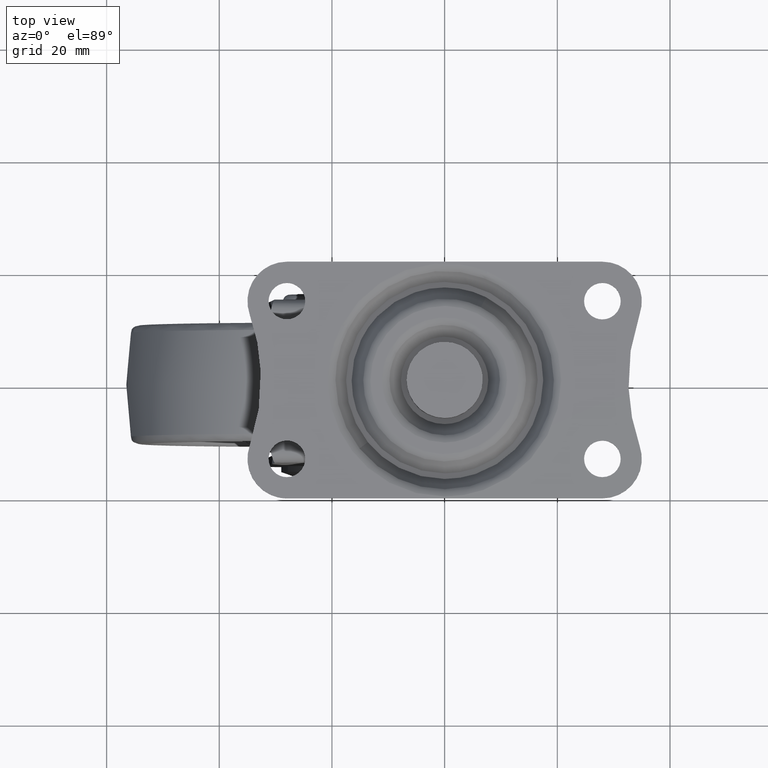
[diagram: clean part render]
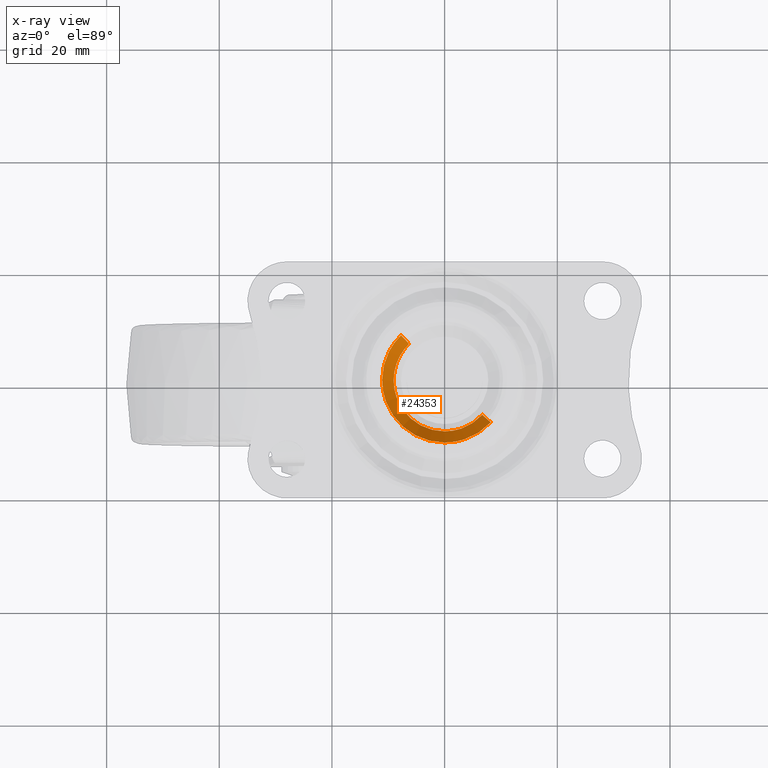
[diagram: x-ray — body ghosted, one internal face saturated and labeled with its STEP entity id]
A machine part, top view, then the same camera in x-ray: the body is ghosted and one INTERNAL B-rep face — a face not visible from any outside direction — is saturated and labeled: STEP entity #24353.
In plain terms, the highlighted face is a freeform B-spline surface patch.
Its self-contained STEP definition (entity closure, byte-faithful):
#24225=CARTESIAN_POINT('',(-6.275352381017203,6.448280884698090,-3.638749211876232));
#24226=CARTESIAN_POINT('',(-6.459899409568419,6.268682995627110,-3.638749211876231));
#24227=CARTESIAN_POINT('',(-6.633872752473064,6.078824407555831,-3.638749211876231));
#24228=CARTESIAN_POINT('',(-12.712697160028895,-0.555048344917233,-3.638749211876231));
#24229=CARTESIAN_POINT('',(-6.078824407555831,-6.633872752473064,-3.638749211876231));
#24230=CARTESIAN_POINT('',(0.555048344917233,-12.712697160028895,-3.638749211876231));
#24231=CARTESIAN_POINT('',(6.633872752473064,-6.078824407555831,-3.638749211876231));
#24232=CARTESIAN_POINT('',(-7.777170112977967,7.991483877186217,0.090968730296906));
#24233=CARTESIAN_POINT('',(-8.005882948169345,7.768904609851055,0.090968730296906));
#24234=CARTESIAN_POINT('',(-8.221491602591003,7.533609052376593,0.090968730296906));
#24235=CARTESIAN_POINT('',(-15.755100654967590,-0.687882550214410,0.090968730296906));
#24236=CARTESIAN_POINT('',(-7.533609052376593,-8.221491602591003,0.090968730296906));
#24237=CARTESIAN_POINT('',(0.687882550214410,-15.755100654967590,0.090968730296906));
#24238=CARTESIAN_POINT('',(8.221491602591003,-7.533609052376593,0.090968730296906));
#24246=(BOUNDED_SURFACE()B_SPLINE_SURFACE(2,1,((#24225,#24232),(#24226,#24233),(#24227,#24234),(#24228,#24235),(#24229,#24236),(#24230,#24237),(#24231,#24238)),.UNSPECIFIED.,.F.,.F.,.U.)B_SPLINE_SURFACE_WITH_KNOTS((3,2,2,3),(2,2),(0.0,0.739033338952446,19.214866812763582,37.690700286574710),(0.0,4.306707315830076),.UNSPECIFIED.)GEOMETRIC_REPRESENTATION_ITEM()RATIONAL_B_SPLINE_SURFACE(((0.977505800795127,0.977505800795127),(0.988284271247462,0.988284271247462),(1.0,1.0),(0.707106781186548,0.707106781186548),(1.0,1.0),(0.707106781186548,0.707106781186548),(1.0,1.0)))REPRESENTATION_ITEM('')SURFACE());
#24247=CARTESIAN_POINT('',(-11.098631116230660,0.0,0.0));
#24248=VERTEX_POINT('',#24247);
#24249=CARTESIAN_POINT('',(-7.740539907559015,7.953844261262740,-0.000000250651297));
#24250=VERTEX_POINT('',#24249);
#24251=CARTESIAN_POINT('',(-11.098631116230660,0.0,0.0));
#24252=CARTESIAN_POINT('',(-11.099026680331100,1.016138287757117,-0.000000032021796));
#24253=CARTESIAN_POINT('',(-10.875005421913150,2.632417289203939,-0.000000082955963));
#24254=CARTESIAN_POINT('',(-10.148532275371441,4.587002487325278,-0.000000144551249));
#24255=CARTESIAN_POINT('',(-9.217833806230939,6.293268531928642,-0.000000198321198));
#24256=CARTESIAN_POINT('',(-8.369601365451421,7.341970969072723,-0.000000231369196));
#24257=CARTESIAN_POINT('',(-7.740539907559015,7.953844261262740,-0.000000250651297));
#24258=B_SPLINE_CURVE_WITH_KNOTS('',3,(#24251,#24252,#24253,#24254,#24255,#24256,#24257),.UNSPECIFIED.,.F.,.U.,(4,1,1,1,4),(0.000000023090429,3.048291993790739,4.849521519612389,6.235121552947033,8.867735396641711),.UNSPECIFIED.);
#24259=EDGE_CURVE('',#24248,#24250,#24258,.T.);
#24260=ORIENTED_EDGE('',*,*,#24259,.T.);
#24261=CARTESIAN_POINT('',(-6.311088674813226,6.485001955672990,-3.549999230230663));
#24262=VERTEX_POINT('',#24261);
#24263=CARTESIAN_POINT('',(-6.311088674813226,6.485001955672990,-3.549999230230663));
#24264=CARTESIAN_POINT('',(-7.740539907559015,7.953844261262740,-0.000000250651297));
#24265=QUASI_UNIFORM_CURVE('',1,(#24263,#24264),.UNSPECIFIED.,.F.,.U.);
#24266=EDGE_CURVE('',#24262,#24250,#24265,.T.);
#24267=ORIENTED_EDGE('',*,*,#24266,.F.);
#24268=CARTESIAN_POINT('',(-7.929732538893569,4.359407354090626,-3.549999231098762));
#24269=VERTEX_POINT('',#24268);
#24270=CARTESIAN_POINT('',(-7.929732538893569,4.359407354090626,-3.549999231098762));
#24271=CARTESIAN_POINT('',(-7.499254136962046,5.142785371195523,-3.549999230783733));
#24272=CARTESIAN_POINT('',(-6.951909705705177,5.861801094461892,-3.549999230490087));
#24273=CARTESIAN_POINT('',(-6.311088674813226,6.485001955672990,-3.549999230230663));
#24274=B_SPLINE_CURVE_WITH_KNOTS('',3,(#24270,#24271,#24272,#24273),.UNSPECIFIED.,.F.,.U.,(4,4),(3.897561E-009,2.681543873727163),.UNSPECIFIED.);
#24275=EDGE_CURVE('',#24269,#24262,#24274,.T.);
#24276=ORIENTED_EDGE('',*,*,#24275,.F.);
#24277=CARTESIAN_POINT('',(-9.049038105676662,0.0,-3.549999229117570));
#24278=VERTEX_POINT('',#24277);
#24279=CARTESIAN_POINT('',(-9.049038105676662,0.0,-3.549999229117570));
#24280=CARTESIAN_POINT('',(-9.049070596346232,0.521186822193810,-3.549999229117509));
#24281=CARTESIAN_POINT('',(-8.954665831790218,1.610941033083731,-3.549999229284618));
#24282=CARTESIAN_POINT('',(-8.552812910382972,3.079882761023559,-3.549999229995895));
#24283=CARTESIAN_POINT('',(-8.135170822972350,3.985732889499337,-3.549999230735138));
#24284=CARTESIAN_POINT('',(-7.929732538893569,4.359407354090626,-3.549999231098762));
#24285=B_SPLINE_CURVE_WITH_KNOTS('',3,(#24279,#24280,#24281,#24282,#24283,#24284),.UNSPECIFIED.,.F.,.U.,(4,1,1,4),(5.581610E-009,1.563577705939092,3.269298635704525,4.548589419841812),.UNSPECIFIED.);
#24286=EDGE_CURVE('',#24278,#24269,#24285,.T.);
#24287=ORIENTED_EDGE('',*,*,#24286,.F.);
#24288=CARTESIAN_POINT('',(-0.000002565738609,-9.049038105676297,-3.549999229117570));
#24289=VERTEX_POINT('',#24288);
#24290=CARTESIAN_POINT('',(-0.000002565738609,-9.049038105676297,-3.549999229117570));
#24291=CARTESIAN_POINT('',(-0.592257297561995,-9.049116562267564,-3.549999229117571));
#24292=CARTESIAN_POINT('',(-1.591657879998566,-8.950546108700136,-3.549999229117566));
#24293=CARTESIAN_POINT('',(-3.131794825881588,-8.534519712944064,-3.549999229117571));
#24294=CARTESIAN_POINT('',(-4.653604364157085,-7.837605503857790,-3.549999229117569));
#24295=CARTESIAN_POINT('',(-6.119331742639263,-6.750489791863275,-3.549999229117572));
#24296=CARTESIAN_POINT('',(-7.259826638539376,-5.476422047816167,-3.549999229117560));
#24297=CARTESIAN_POINT('',(-8.027064294848067,-4.248143526732790,-3.549999229117600));
#24298=CARTESIAN_POINT('',(-8.560819649660314,-3.023789668367105,-3.549999229117566));
#24299=CARTESIAN_POINT('',(-8.946911530924272,-1.628675833537863,-3.549999229117593));
#24300=CARTESIAN_POINT('',(-9.049112912418677,-0.592254414775790,-3.549999229117515));
#24301=CARTESIAN_POINT('',(-9.049038105676662,0.0,-3.549999229117570));
#24302=B_SPLINE_CURVE_WITH_KNOTS('',3,(#24290,#24291,#24292,#24293,#24294,#24295,#24296,#24297,#24298,#24299,#24300,#24301),.UNSPECIFIED.,.F.,.U.,(4,1,1,1,1,1,1,1,1,4),(0.000000113192669,1.776757980613413,2.998323726201360,4.775130331233964,6.774040870650740,8.439696275261888,9.883356939964610,11.104911559467700,12.437524691607910,14.214283559371371),.UNSPECIFIED.);
#24303=EDGE_CURVE('',#24289,#24278,#24302,.T.);
#24304=ORIENTED_EDGE('',*,*,#24303,.F.);
#24305=CARTESIAN_POINT('',(6.671650126351979,-6.113440992913706,-3.549999505810015));
#24306=VERTEX_POINT('',#24305);
#24307=CARTESIAN_POINT('',(6.671650126351979,-6.113440992913706,-3.549999505810015));
#24308=CARTESIAN_POINT('',(6.328513980411414,-6.487960644494883,-3.549999491579186));
#24309=CARTESIAN_POINT('',(5.550127379494427,-7.205588586999760,-3.549999459297279));
#24310=CARTESIAN_POINT('',(4.261902681720523,-8.031225516755077,-3.549999405870938));
#24311=CARTESIAN_POINT('',(2.818963412504174,-8.643955910096439,-3.549999346028125));
#24312=CARTESIAN_POINT('',(1.406614428093220,-8.979356988792356,-3.549999287454001));
#24313=CARTESIAN_POINT('',(0.429793020980040,-9.049049669153765,-3.549999246942426));
#24314=CARTESIAN_POINT('',(-0.000002565738609,-9.049038105676297,-3.549999229117570));
#24315=B_SPLINE_CURVE_WITH_KNOTS('',3,(#24307,#24308,#24309,#24310,#24311,#24312,#24313,#24314),.UNSPECIFIED.,.F.,.U.,(4,1,1,1,1,4),(0.000000028262368,1.523838654733125,3.164917960566754,4.571521479596308,6.212593633029307,7.501991362628532),.UNSPECIFIED.);
#24316=EDGE_CURVE('',#24306,#24289,#24315,.T.);
#24317=ORIENTED_EDGE('',*,*,#24316,.F.);
#24318=CARTESIAN_POINT('',(8.182768659975965,-7.498126012908743,-0.000000249789727));
#24319=VERTEX_POINT('',#24318);
#24320=CARTESIAN_POINT('',(6.671650126351979,-6.113440992913706,-3.549999505810015));
#24321=CARTESIAN_POINT('',(8.182768659975965,-7.498126012908743,-0.000000249789727));
#24322=QUASI_UNIFORM_CURVE('',1,(#24320,#24321),.UNSPECIFIED.,.F.,.U.);
#24323=EDGE_CURVE('',#24306,#24319,#24322,.T.);
#24324=ORIENTED_EDGE('',*,*,#24323,.T.);
#24325=CARTESIAN_POINT('',(-0.000002316272697,-11.098631116230420,0.0));
#24326=VERTEX_POINT('',#24325);
#24327=CARTESIAN_POINT('',(8.182768659975965,-7.498126012908743,-0.000000249789727));
#24328=CARTESIAN_POINT('',(7.632480848820251,-8.098884982569802,-0.000000232991478));
#24329=CARTESIAN_POINT('',(6.580156278358750,-9.019502060871048,-0.000000200867905));
#24330=CARTESIAN_POINT('',(4.797959798891673,-10.066330146151319,-0.000000146464041));
#24331=CARTESIAN_POINT('',(2.683498662881012,-10.868895890234580,-0.000000081917364));
#24332=CARTESIAN_POINT('',(1.006403796788836,-11.098957073777679,-0.000000030721858));
#24333=CARTESIAN_POINT('',(-0.000002316272697,-11.098631116230420,0.0));
#24334=B_SPLINE_CURVE_WITH_KNOTS('',3,(#24327,#24328,#24329,#24330,#24331,#24332,#24333),.UNSPECIFIED.,.F.,.U.,(4,1,1,1,4),(0.000000021237559,2.444065362254084,4.169303560638908,6.182042118648760,9.201179976503736),.UNSPECIFIED.);
#24335=EDGE_CURVE('',#24319,#24326,#24334,.T.);
#24336=ORIENTED_EDGE('',*,*,#24335,.T.);
#24337=CARTESIAN_POINT('',(-0.000002316272697,-11.098631116230420,0.0));
#24338=CARTESIAN_POINT('',(-1.089655070192119,-11.099050428787290,0.0));
#24339=CARTESIAN_POINT('',(-2.859983490331678,-10.835762719325970,0.0));
#24340=CARTESIAN_POINT('',(-5.055842893718509,-9.941721263908985,0.0));
#24341=CARTESIAN_POINT('',(-6.562305268718258,-9.000639965510612,0.0));
#24342=CARTESIAN_POINT('',(-7.878532967873051,-7.879278287727689,0.0));
#24343=CARTESIAN_POINT('',(-8.979788527041077,-6.602632210678086,0.0));
#24344=CARTESIAN_POINT('',(-9.935023079872060,-5.052361680404343,0.0));
#24345=CARTESIAN_POINT('',(-10.824509031306039,-2.905313166085586,0.0));
#24346=CARTESIAN_POINT('',(-11.099254546455430,-1.135090055749051,0.0));
#24347=CARTESIAN_POINT('',(-11.098631116230660,0.0,0.0));
#24348=B_SPLINE_CURVE_WITH_KNOTS('',3,(#24337,#24338,#24339,#24340,#24341,#24342,#24343,#24344,#24345,#24346,#24347),.UNSPECIFIED.,.F.,.U.,(4,1,1,1,1,1,1,1,4),(0.000000068855758,3.268824956627626,5.311868890073525,7.082504095709265,8.580713620817717,10.487486329832571,12.121934482807729,14.028761176495880,17.433797073328719),.UNSPECIFIED.);
#24349=EDGE_CURVE('',#24326,#24248,#24348,.T.);
#24350=ORIENTED_EDGE('',*,*,#24349,.T.);
#24351=EDGE_LOOP('',(#24260,#24267,#24276,#24287,#24304,#24317,#24324,#24336,#24350));
#24352=FACE_OUTER_BOUND('',#24351,.T.);
#24353=ADVANCED_FACE('',(#24352),#24246,.T.);